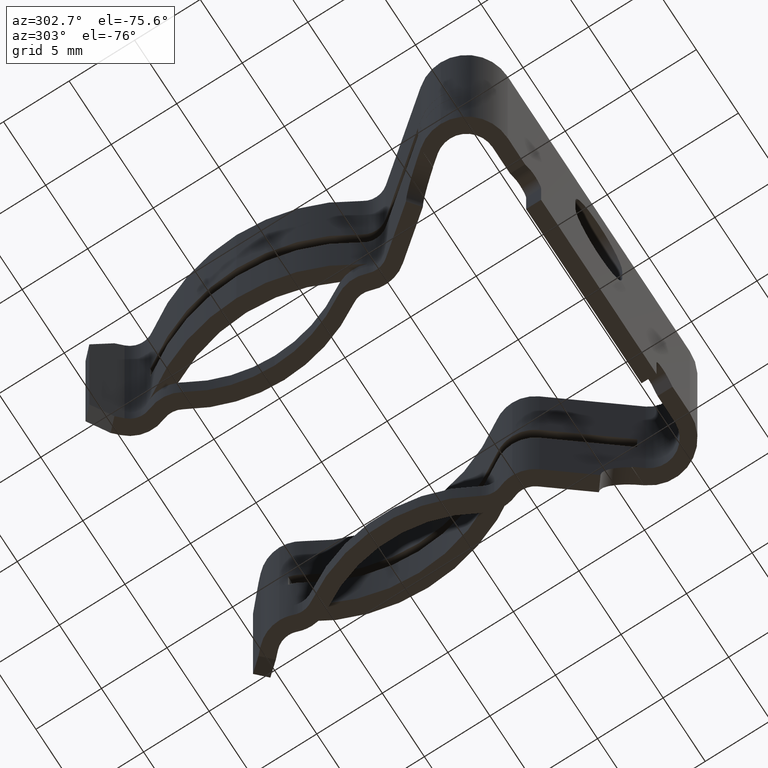
[diagram: clean part render]
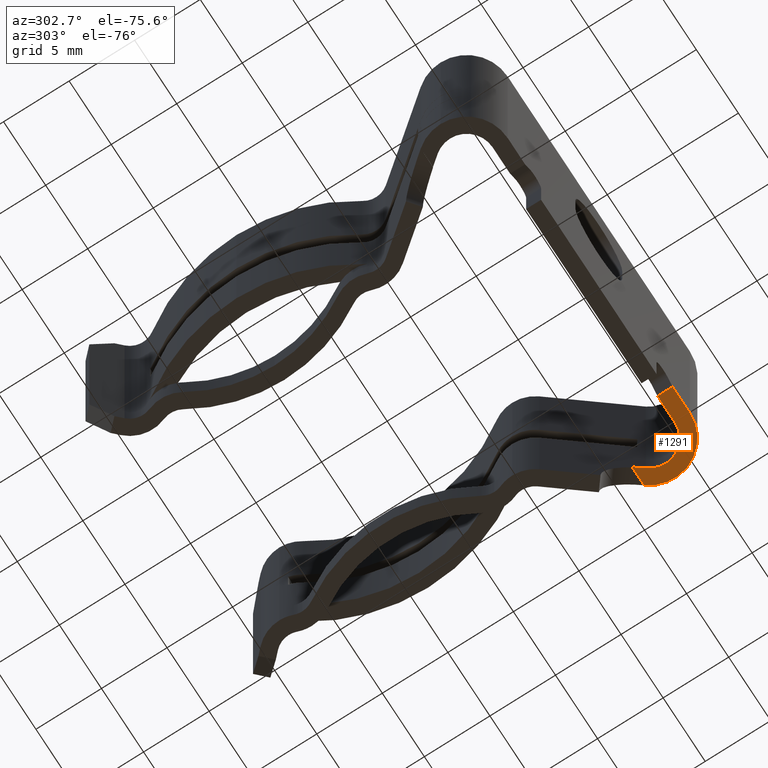
[diagram: same view with one face highlighted and labeled with its STEP entity id]
A machine part, auxiliary view. The second image highlights one B-rep face of the part: STEP entity #1291.
In plain terms, the highlighted planar face has unit normal (-0, 0, 1).
Its self-contained STEP definition (entity closure, byte-faithful):
#22 = AXIS2_PLACEMENT_3D ( 'NONE', #3905, #3833, #3764 ) ;
#218 = EDGE_CURVE ( 'NONE', #2381, #2564, #2009, .T. ) ;
#298 = CIRCLE ( 'NONE', #1400, 0.1229999999999999600 ) ;
#395 = DIRECTION ( 'NONE',  ( 1.000000000000000000, -0.0000000000000000000, 0.0000000000000000000 ) ) ;
#414 = LINE ( 'NONE', #2447, #2227 ) ;
#525 = VERTEX_POINT ( 'NONE', #4254 ) ;
#640 = EDGE_CURVE ( 'NONE', #3281, #2851, #4224, .T. ) ;
#646 = CARTESIAN_POINT ( 'NONE',  ( 0.4869888472576595600, 0.1263970740196950500, -0.6049999999999999800 ) ) ;
#775 = DIRECTION ( 'NONE',  ( -0.6204753079448088700, 0.7842259828842669300, -0.0000000000000000000 ) ) ;
#795 = DIRECTION ( 'NONE',  ( -0.0000000000000000000, 0.0000000000000000000, 1.000000000000000000 ) ) ;
#830 = CARTESIAN_POINT ( 'NONE',  ( 0.3448406204335657800, -0.04499999999999999800, -0.6049999999999999800 ) ) ;
#1009 = DIRECTION ( 'NONE',  ( 1.000000000000000000, 0.0000000000000000000, 0.0000000000000000000 ) ) ;
#1013 = DIRECTION ( 'NONE',  ( -0.0000000000000000000, 0.0000000000000000000, 1.000000000000000000 ) ) ;
#1029 = CARTESIAN_POINT ( 'NONE',  ( 0.4258192205926868400, 0.07800000000000000000, -0.6049999999999999800 ) ) ;
#1101 = CARTESIAN_POINT ( 'NONE',  ( -0.4258192205926868400, 0.0000000000000000000, -0.6049999999999999800 ) ) ;
#1291 = ADVANCED_FACE ( 'NONE', ( #1844 ), #3572, .F. ) ;
#1298 = EDGE_CURVE ( 'NONE', #525, #3281, #1607, .T. ) ;
#1305 = EDGE_LOOP ( 'NONE', ( #1739, #1963, #2072, #2242, #2350, #2415, #2533 ) ) ;
#1400 = AXIS2_PLACEMENT_3D ( 'NONE', #1029, #1013, #1009 ) ;
#1425 = CARTESIAN_POINT ( 'NONE',  ( 0.4258192205926866800, 0.0000000000000000000, -0.6049999999999999800 ) ) ;
#1462 = EDGE_CURVE ( 'NONE', #4284, #2381, #4499, .T. ) ;
#1475 = CARTESIAN_POINT ( 'NONE',  ( 0.5222790164874515600, 0.1543184628772114300, -0.6049999999999999800 ) ) ;
#1495 = CIRCLE ( 'NONE', #22, 0.07799999999999995800 ) ;
#1499 = VECTOR ( 'NONE', #775, 39.37007874015748900 ) ;
#1560 = VECTOR ( 'NONE', #1966, 39.37007874015748100 ) ;
#1607 = LINE ( 'NONE', #646, #1499 ) ;
#1739 = ORIENTED_EDGE ( 'NONE', *, *, #2984, .T. ) ;
#1844 = FACE_OUTER_BOUND ( 'NONE', #1305, .T. ) ;
#1963 = ORIENTED_EDGE ( 'NONE', *, *, #1298, .T. ) ;
#1966 = DIRECTION ( 'NONE',  ( 1.000000000000000000, 0.0000000000000000000, 0.0000000000000000000 ) ) ;
#2009 = LINE ( 'NONE', #1101, #3349 ) ;
#2072 = ORIENTED_EDGE ( 'NONE', *, *, #640, .T. ) ;
#2144 = AXIS2_PLACEMENT_3D ( 'NONE', #830, #795, #3430 ) ;
#2227 = VECTOR ( 'NONE', #2889, 39.37007874015748100 ) ;
#2242 = ORIENTED_EDGE ( 'NONE', *, *, #3598, .F. ) ;
#2320 = CARTESIAN_POINT ( 'NONE',  ( 0.4258192205926868400, -0.04499999999999999800, -0.6049999999999999800 ) ) ;
#2350 = ORIENTED_EDGE ( 'NONE', *, *, #3075, .F. ) ;
#2381 = VERTEX_POINT ( 'NONE', #3611 ) ;
#2415 = ORIENTED_EDGE ( 'NONE', *, *, #1462, .T. ) ;
#2447 = CARTESIAN_POINT ( 'NONE',  ( 0.3448406204335657800, -0.04499999999999999800, -0.6049999999999999800 ) ) ;
#2533 = ORIENTED_EDGE ( 'NONE', *, *, #218, .T. ) ;
#2564 = VERTEX_POINT ( 'NONE', #1425 ) ;
#2680 = DIRECTION ( 'NONE',  ( -0.0000000000000000000, 1.000000000000000000, -0.0000000000000000000 ) ) ;
#2757 = CARTESIAN_POINT ( 'NONE',  ( 0.3448406204335657800, -0.04499999999999999800, -0.6049999999999999800 ) ) ;
#2851 = VERTEX_POINT ( 'NONE', #1475 ) ;
#2872 = CARTESIAN_POINT ( 'NONE',  ( 0.3448406204335657800, -0.04499999999999999800, -0.6049999999999999800 ) ) ;
#2889 = DIRECTION ( 'NONE',  ( 1.000000000000000000, 0.0000000000000000000, 0.0000000000000000000 ) ) ;
#2984 = EDGE_CURVE ( 'NONE', #2564, #525, #1495, .T. ) ;
#3075 = EDGE_CURVE ( 'NONE', #4284, #3823, #414, .T. ) ;
#3281 = VERTEX_POINT ( 'NONE', #3650 ) ;
#3349 = VECTOR ( 'NONE', #395, 39.37007874015748100 ) ;
#3430 = DIRECTION ( 'NONE',  ( 1.000000000000000000, 0.0000000000000000000, 0.0000000000000000000 ) ) ;
#3572 = PLANE ( 'NONE',  #2144 ) ;
#3598 = EDGE_CURVE ( 'NONE', #3823, #2851, #298, .T. ) ;
#3611 = CARTESIAN_POINT ( 'NONE',  ( 0.3448406204335657800, 0.0000000000000000000, -0.6049999999999999800 ) ) ;
#3638 = CARTESIAN_POINT ( 'NONE',  ( 0.3448406204335657800, 0.1543184628772114300, -0.6049999999999999800 ) ) ;
#3650 = CARTESIAN_POINT ( 'NONE',  ( 0.4648975971234862700, 0.1543184628772114300, -0.6049999999999999800 ) ) ;
#3764 = DIRECTION ( 'NONE',  ( 1.000000000000000000, 0.0000000000000000000, 0.0000000000000000000 ) ) ;
#3823 = VERTEX_POINT ( 'NONE', #2320 ) ;
#3833 = DIRECTION ( 'NONE',  ( -0.0000000000000000000, 0.0000000000000000000, 1.000000000000000000 ) ) ;
#3905 = CARTESIAN_POINT ( 'NONE',  ( 0.4258192205926868400, 0.07800000000000000000, -0.6049999999999999800 ) ) ;
#4180 = VECTOR ( 'NONE', #2680, 39.37007874015748100 ) ;
#4224 = LINE ( 'NONE', #3638, #1560 ) ;
#4254 = CARTESIAN_POINT ( 'NONE',  ( 0.4869888472576596200, 0.1263970740196951000, -0.6049999999999999800 ) ) ;
#4284 = VERTEX_POINT ( 'NONE', #2757 ) ;
#4499 = LINE ( 'NONE', #2872, #4180 ) ;